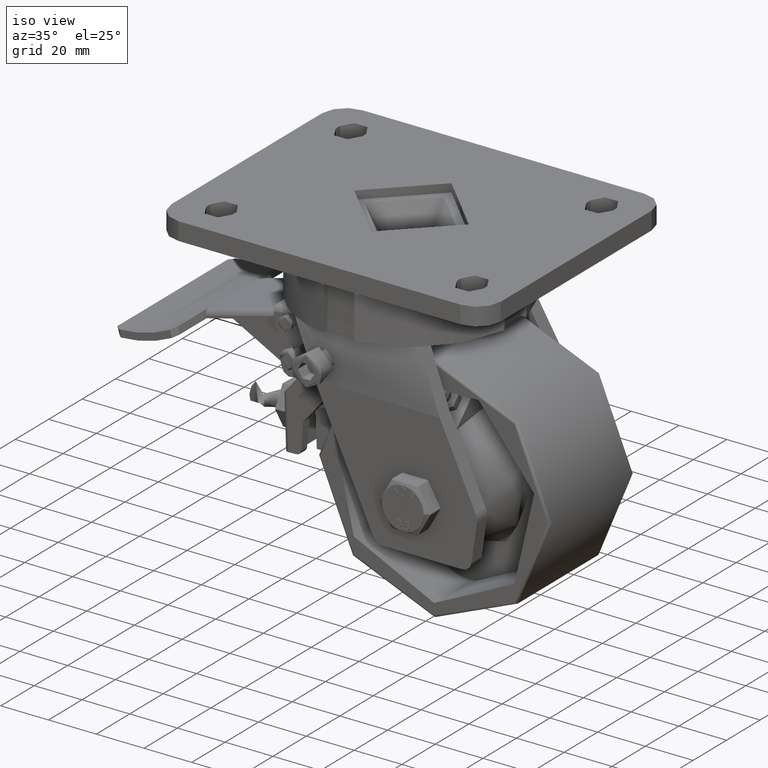
[diagram: clean part render]
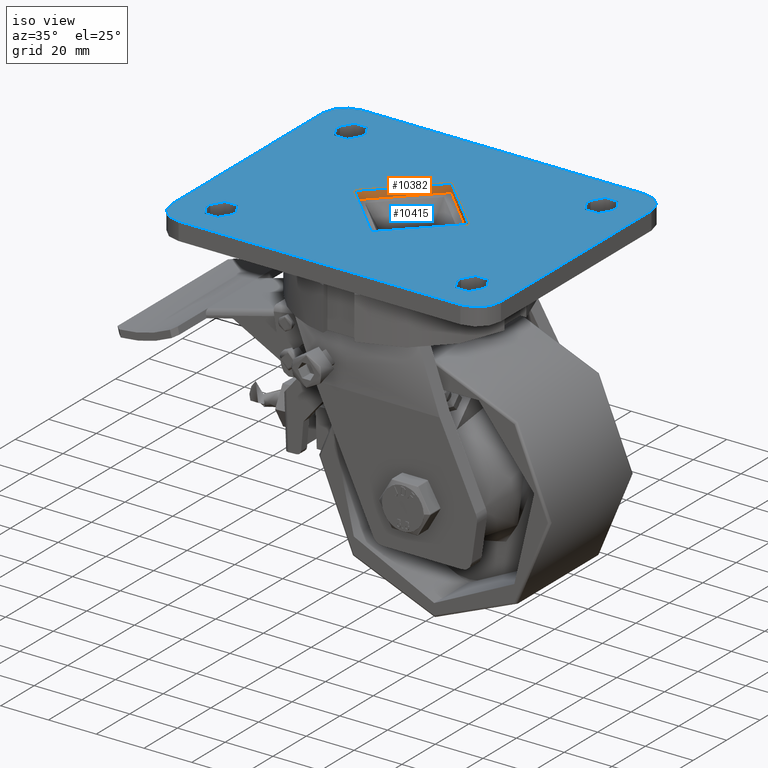
[diagram: same view with the hole feature highlighted: cylindrical wall and planar end face, labeled with their STEP entity ids]
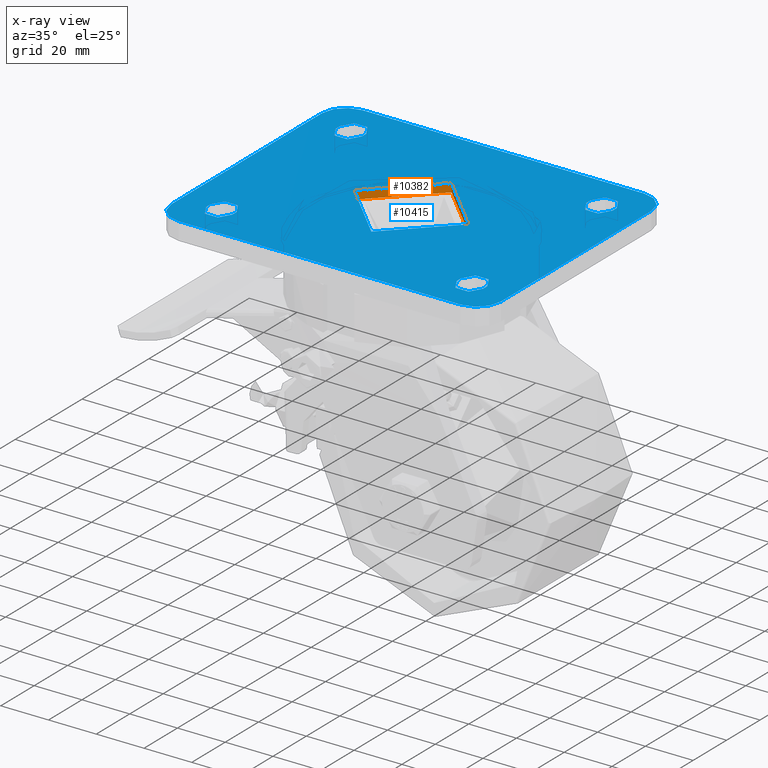
[diagram: x-ray of the same camera — body ghosted, the hole faces saturated]
A machine part, iso view. The highlighted faces form one hole feature of diameter 48 mm: the cylindrical wall (entity #10382, orange) and its adjacent planar end face (entity #10415, blue) — they share a circular edge in the B-rep.
The next image is the same camera in x-ray (body ghosted, the hole faces saturated) — the bore reads through the body.
Wall:
#712=CYLINDRICAL_SURFACE('',#11340,24.);
#1319=FACE_OUTER_BOUND('',#1964,.T.);
#1964=EDGE_LOOP('',(#7467,#7468,#7469,#7470));
#2677=LINE('',#16041,#3475);
#3475=VECTOR('',#12600,24.);
#4312=CIRCLE('',#11341,24.);
#4313=CIRCLE('',#11342,24.);
#4767=VERTEX_POINT('',#16038);
#4768=VERTEX_POINT('',#16040);
#5809=EDGE_CURVE('',#4767,#4767,#4312,.F.);
#5810=EDGE_CURVE('',#4767,#4768,#2677,.T.);
#5811=EDGE_CURVE('',#4768,#4768,#4313,.T.);
#7467=ORIENTED_EDGE('',*,*,#5809,.F.);
#7468=ORIENTED_EDGE('',*,*,#5810,.T.);
#7469=ORIENTED_EDGE('',*,*,#5811,.T.);
#7470=ORIENTED_EDGE('',*,*,#5810,.F.);
#10382=ADVANCED_FACE('',(#1319),#712,.F.);
#11340=AXIS2_PLACEMENT_3D('',#16037,#12596,#12597);
#11341=AXIS2_PLACEMENT_3D('',#16039,#12598,#12599);
#11342=AXIS2_PLACEMENT_3D('',#16042,#12601,#12602);
#12596=DIRECTION('center_axis',(0.,0.,1.));
#12597=DIRECTION('ref_axis',(1.,0.,0.));
#12598=DIRECTION('center_axis',(0.,0.,-1.));
#12599=DIRECTION('ref_axis',(1.,0.,0.));
#12600=DIRECTION('',(0.,0.,1.));
#12601=DIRECTION('center_axis',(0.,0.,1.));
#12602=DIRECTION('ref_axis',(1.,0.,0.));
#16037=CARTESIAN_POINT('Origin',(0.,0.,0.));
#16038=CARTESIAN_POINT('',(-24.,-2.93915231795365E-15,-3.5));
#16039=CARTESIAN_POINT('Origin',(0.,0.,-3.5));
#16040=CARTESIAN_POINT('',(-24.,-2.93915231795365E-15,0.));
#16041=CARTESIAN_POINT('',(-24.,-2.93915231795365E-15,0.));
#16042=CARTESIAN_POINT('Origin',(0.,0.,0.));
End face:
#302=FACE_BOUND('',#2005,.T.);
#303=FACE_BOUND('',#2006,.T.);
#304=FACE_BOUND('',#2007,.T.);
#305=FACE_BOUND('',#2008,.T.);
#306=FACE_BOUND('',#2009,.T.);
#424=PLANE('',#11407);
#1352=FACE_OUTER_BOUND('',#2004,.T.);
#2004=EDGE_LOOP('',(#7613,#7614,#7615,#7616,#7617,#7618,#7619,#7620));
#2005=EDGE_LOOP('',(#7621));
#2006=EDGE_LOOP('',(#7622,#7623,#7624,#7625));
#2007=EDGE_LOOP('',(#7626,#7627,#7628,#7629));
#2008=EDGE_LOOP('',(#7630,#7631,#7632,#7633));
#2009=EDGE_LOOP('',(#7634,#7635,#7636,#7637));
#2690=LINE('',#16103,#3488);
#2692=LINE('',#16106,#3490);
#2694=LINE('',#16109,#3492);
#2704=LINE('',#16148,#3502);
#2708=LINE('',#16158,#3506);
#2710=LINE('',#16164,#3508);
#2714=LINE('',#16174,#3512);
#2716=LINE('',#16180,#3514);
#2720=LINE('',#16190,#3518);
#2722=LINE('',#16196,#3520);
#2726=LINE('',#16206,#3524);
#2728=LINE('',#16212,#3526);
#3488=VECTOR('',#12665,1000.);
#3490=VECTOR('',#12669,1000.);
#3492=VECTOR('',#12673,1000.);
#3502=VECTOR('',#12709,1000.);
#3506=VECTOR('',#12719,1000.);
#3508=VECTOR('',#12727,1000.);
#3512=VECTOR('',#12737,1000.);
#3514=VECTOR('',#12745,1000.);
#3518=VECTOR('',#12755,1000.);
#3520=VECTOR('',#12763,1000.);
#3524=VECTOR('',#12773,1000.);
#3526=VECTOR('',#12781,1000.);
#4313=CIRCLE('',#11342,24.);
#4322=CIRCLE('',#11356,10.);
#4324=CIRCLE('',#11359,10.);
#4326=CIRCLE('',#11362,10.);
#4328=CIRCLE('',#11365,10.);
#4338=CIRCLE('',#11384,5.5);
#4339=CIRCLE('',#11387,5.5);
#4340=CIRCLE('',#11390,5.5);
#4341=CIRCLE('',#11393,5.5);
#4342=CIRCLE('',#11396,5.5);
#4343=CIRCLE('',#11399,5.5);
#4344=CIRCLE('',#11402,5.5);
#4345=CIRCLE('',#11405,5.5);
#4768=VERTEX_POINT('',#16040);
#4776=VERTEX_POINT('',#16066);
#4777=VERTEX_POINT('',#16067);
#4780=VERTEX_POINT('',#16075);
#4781=VERTEX_POINT('',#16076);
#4784=VERTEX_POINT('',#16084);
#4785=VERTEX_POINT('',#16085);
#4788=VERTEX_POINT('',#16093);
#4789=VERTEX_POINT('',#16094);
#4808=VERTEX_POINT('',#16150);
#4809=VERTEX_POINT('',#16152);
#4810=VERTEX_POINT('',#16156);
#4811=VERTEX_POINT('',#16160);
#4812=VERTEX_POINT('',#16166);
#4813=VERTEX_POINT('',#16168);
#4814=VERTEX_POINT('',#16172);
#4815=VERTEX_POINT('',#16176);
#4816=VERTEX_POINT('',#16182);
#4817=VERTEX_POINT('',#16184);
#4818=VERTEX_POINT('',#16188);
#4819=VERTEX_POINT('',#16192);
#4820=VERTEX_POINT('',#16198);
#4821=VERTEX_POINT('',#16200);
#4822=VERTEX_POINT('',#16204);
#4823=VERTEX_POINT('',#16208);
#5811=EDGE_CURVE('',#4768,#4768,#4313,.T.);
#5823=EDGE_CURVE('',#4776,#4777,#4322,.T.);
#5827=EDGE_CURVE('',#4780,#4781,#4324,.T.);
#5831=EDGE_CURVE('',#4784,#4785,#4326,.T.);
#5835=EDGE_CURVE('',#4788,#4789,#4328,.T.);
#5840=EDGE_CURVE('',#4785,#4788,#2690,.T.);
#5842=EDGE_CURVE('',#4781,#4784,#2692,.T.);
#5844=EDGE_CURVE('',#4777,#4780,#2694,.T.);
#5862=EDGE_CURVE('',#4789,#4776,#2704,.T.);
#5864=EDGE_CURVE('',#4809,#4808,#4338,.T.);
#5867=EDGE_CURVE('',#4808,#4810,#2708,.T.);
#5869=EDGE_CURVE('',#4810,#4811,#4339,.T.);
#5870=EDGE_CURVE('',#4811,#4809,#2710,.T.);
#5872=EDGE_CURVE('',#4813,#4812,#4340,.T.);
#5875=EDGE_CURVE('',#4812,#4814,#2714,.T.);
#5877=EDGE_CURVE('',#4814,#4815,#4341,.T.);
#5878=EDGE_CURVE('',#4815,#4813,#2716,.T.);
#5880=EDGE_CURVE('',#4817,#4816,#4342,.T.);
#5883=EDGE_CURVE('',#4816,#4818,#2720,.T.);
#5885=EDGE_CURVE('',#4818,#4819,#4343,.T.);
#5886=EDGE_CURVE('',#4819,#4817,#2722,.T.);
#5888=EDGE_CURVE('',#4821,#4820,#4344,.T.);
#5891=EDGE_CURVE('',#4820,#4822,#2726,.T.);
#5893=EDGE_CURVE('',#4822,#4823,#4345,.T.);
#5894=EDGE_CURVE('',#4823,#4821,#2728,.T.);
#7613=ORIENTED_EDGE('',*,*,#5835,.F.);
#7614=ORIENTED_EDGE('',*,*,#5840,.F.);
#7615=ORIENTED_EDGE('',*,*,#5831,.F.);
#7616=ORIENTED_EDGE('',*,*,#5842,.F.);
#7617=ORIENTED_EDGE('',*,*,#5827,.F.);
#7618=ORIENTED_EDGE('',*,*,#5844,.F.);
#7619=ORIENTED_EDGE('',*,*,#5823,.F.);
#7620=ORIENTED_EDGE('',*,*,#5862,.F.);
#7621=ORIENTED_EDGE('',*,*,#5811,.F.);
#7622=ORIENTED_EDGE('',*,*,#5894,.T.);
#7623=ORIENTED_EDGE('',*,*,#5888,.T.);
#7624=ORIENTED_EDGE('',*,*,#5891,.T.);
#7625=ORIENTED_EDGE('',*,*,#5893,.T.);
#7626=ORIENTED_EDGE('',*,*,#5886,.T.);
#7627=ORIENTED_EDGE('',*,*,#5880,.T.);
#7628=ORIENTED_EDGE('',*,*,#5883,.T.);
#7629=ORIENTED_EDGE('',*,*,#5885,.T.);
#7630=ORIENTED_EDGE('',*,*,#5878,.T.);
#7631=ORIENTED_EDGE('',*,*,#5872,.T.);
#7632=ORIENTED_EDGE('',*,*,#5875,.T.);
#7633=ORIENTED_EDGE('',*,*,#5877,.T.);
#7634=ORIENTED_EDGE('',*,*,#5870,.T.);
#7635=ORIENTED_EDGE('',*,*,#5864,.T.);
#7636=ORIENTED_EDGE('',*,*,#5867,.T.);
#7637=ORIENTED_EDGE('',*,*,#5869,.T.);
#10415=ADVANCED_FACE('',(#1352,#302,#303,#304,#305,#306),#424,.T.);
#11342=AXIS2_PLACEMENT_3D('',#16042,#12601,#12602);
#11356=AXIS2_PLACEMENT_3D('',#16068,#12632,#12633);
#11359=AXIS2_PLACEMENT_3D('',#16077,#12640,#12641);
#11362=AXIS2_PLACEMENT_3D('',#16086,#12648,#12649);
#11365=AXIS2_PLACEMENT_3D('',#16095,#12656,#12657);
#11384=AXIS2_PLACEMENT_3D('',#16153,#12713,#12714);
#11387=AXIS2_PLACEMENT_3D('',#16162,#12723,#12724);
#11390=AXIS2_PLACEMENT_3D('',#16169,#12731,#12732);
#11393=AXIS2_PLACEMENT_3D('',#16178,#12741,#12742);
#11396=AXIS2_PLACEMENT_3D('',#16185,#12749,#12750);
#11399=AXIS2_PLACEMENT_3D('',#16194,#12759,#12760);
#11402=AXIS2_PLACEMENT_3D('',#16201,#12767,#12768);
#11405=AXIS2_PLACEMENT_3D('',#16210,#12777,#12778);
#11407=AXIS2_PLACEMENT_3D('',#16213,#12782,#12783);
#12601=DIRECTION('center_axis',(0.,0.,1.));
#12602=DIRECTION('ref_axis',(1.,0.,0.));
#12632=DIRECTION('center_axis',(0.,0.,-1.));
#12633=DIRECTION('ref_axis',(-0.707106781186547,0.707106781186548,0.));
#12640=DIRECTION('center_axis',(0.,0.,-1.));
#12641=DIRECTION('ref_axis',(0.707106781186547,0.707106781186548,0.));
#12648=DIRECTION('center_axis',(0.,0.,-1.));
#12649=DIRECTION('ref_axis',(0.707106781186547,-0.707106781186548,0.));
#12656=DIRECTION('center_axis',(0.,0.,-1.));
#12657=DIRECTION('ref_axis',(-0.707106781186547,-0.707106781186548,0.));
#12665=DIRECTION('',(-1.,0.,0.));
#12669=DIRECTION('',(0.,-1.,0.));
#12673=DIRECTION('',(1.,0.,0.));
#12709=DIRECTION('',(0.,1.,0.));
#12713=DIRECTION('center_axis',(0.,0.,-1.));
#12714=DIRECTION('ref_axis',(1.,0.,0.));
#12719=DIRECTION('',(0.,1.,0.));
#12723=DIRECTION('center_axis',(0.,0.,-1.));
#12724=DIRECTION('ref_axis',(1.,0.,0.));
#12727=DIRECTION('',(0.,-1.,0.));
#12731=DIRECTION('center_axis',(0.,0.,-1.));
#12732=DIRECTION('ref_axis',(1.,5.665498452323E-16,0.));
#12737=DIRECTION('',(0.,-1.,0.));
#12741=DIRECTION('center_axis',(0.,0.,-1.));
#12742=DIRECTION('ref_axis',(1.,5.665498452323E-16,0.));
#12745=DIRECTION('',(0.,1.,0.));
#12749=DIRECTION('center_axis',(0.,0.,-1.));
#12750=DIRECTION('ref_axis',(-1.,0.,0.));
#12755=DIRECTION('',(0.,1.,0.));
#12759=DIRECTION('center_axis',(0.,0.,-1.));
#12760=DIRECTION('ref_axis',(-1.,0.,0.));
#12763=DIRECTION('',(0.,-1.,0.));
#12767=DIRECTION('center_axis',(0.,0.,-1.));
#12768=DIRECTION('ref_axis',(-1.,-5.665498452323E-16,0.));
#12773=DIRECTION('',(0.,-1.,0.));
#12777=DIRECTION('center_axis',(0.,0.,-1.));
#12778=DIRECTION('ref_axis',(-1.,-5.665498452323E-16,0.));
#12781=DIRECTION('',(0.,1.,0.));
#12782=DIRECTION('center_axis',(0.,0.,1.));
#12783=DIRECTION('ref_axis',(1.,0.,0.));
#16040=CARTESIAN_POINT('',(-24.,-2.93915231795365E-15,0.));
#16042=CARTESIAN_POINT('Origin',(0.,0.,0.));
#16066=CARTESIAN_POINT('',(-69.,45.,0.));
#16067=CARTESIAN_POINT('',(-59.,55.,0.));
#16068=CARTESIAN_POINT('Origin',(-59.,45.,0.));
#16075=CARTESIAN_POINT('',(59.,55.,0.));
#16076=CARTESIAN_POINT('',(69.,45.,0.));
#16077=CARTESIAN_POINT('Origin',(59.,45.,0.));
#16084=CARTESIAN_POINT('',(69.,-45.,0.));
#16085=CARTESIAN_POINT('',(59.,-55.,0.));
#16086=CARTESIAN_POINT('Origin',(59.,-45.,0.));
#16093=CARTESIAN_POINT('',(-59.,-55.,0.));
#16094=CARTESIAN_POINT('',(-69.,-45.,0.));
#16095=CARTESIAN_POINT('Origin',(-59.,-45.,0.));
#16103=CARTESIAN_POINT('',(69.,-55.,0.));
#16106=CARTESIAN_POINT('',(69.,55.,0.));
#16109=CARTESIAN_POINT('',(-69.,55.,0.));
#16148=CARTESIAN_POINT('',(-69.,-55.,0.));
#16150=CARTESIAN_POINT('',(-58.,37.5,0.));
#16152=CARTESIAN_POINT('',(-47.,37.5,0.));
#16153=CARTESIAN_POINT('Origin',(-52.5,37.5,0.));
#16156=CARTESIAN_POINT('',(-58.,40.,0.));
#16158=CARTESIAN_POINT('',(-58.,40.,0.));
#16160=CARTESIAN_POINT('',(-47.,40.,0.));
#16162=CARTESIAN_POINT('Origin',(-52.5,40.,0.));
#16164=CARTESIAN_POINT('',(-47.,40.,0.));
#16166=CARTESIAN_POINT('',(-47.,-37.5,0.));
#16168=CARTESIAN_POINT('',(-58.,-37.5,0.));
#16169=CARTESIAN_POINT('Origin',(-52.5,-37.5,0.));
#16172=CARTESIAN_POINT('',(-47.,-40.,0.));
#16174=CARTESIAN_POINT('',(-47.,-40.,0.));
#16176=CARTESIAN_POINT('',(-58.,-40.,0.));
#16178=CARTESIAN_POINT('Origin',(-52.5,-40.,0.));
#16180=CARTESIAN_POINT('',(-58.,-40.,0.));
#16182=CARTESIAN_POINT('',(47.,37.5,0.));
#16184=CARTESIAN_POINT('',(58.,37.5,0.));
#16185=CARTESIAN_POINT('Origin',(52.5,37.5,0.));
#16188=CARTESIAN_POINT('',(47.,40.,0.));
#16190=CARTESIAN_POINT('',(47.,40.,0.));
#16192=CARTESIAN_POINT('',(58.,40.,0.));
#16194=CARTESIAN_POINT('Origin',(52.5,40.,0.));
#16196=CARTESIAN_POINT('',(58.,40.,0.));
#16198=CARTESIAN_POINT('',(58.,-37.4999999999999,0.));
#16200=CARTESIAN_POINT('',(47.,-37.4999999999999,0.));
#16201=CARTESIAN_POINT('Origin',(52.5,-37.4999999999999,0.));
#16204=CARTESIAN_POINT('',(58.,-39.9999999999999,0.));
#16206=CARTESIAN_POINT('',(58.,-39.9999999999999,0.));
#16208=CARTESIAN_POINT('',(47.,-39.9999999999999,0.));
#16210=CARTESIAN_POINT('Origin',(52.5,-39.9999999999999,0.));
#16212=CARTESIAN_POINT('',(47.,-39.9999999999999,0.));
#16213=CARTESIAN_POINT('Origin',(0.,0.,0.));